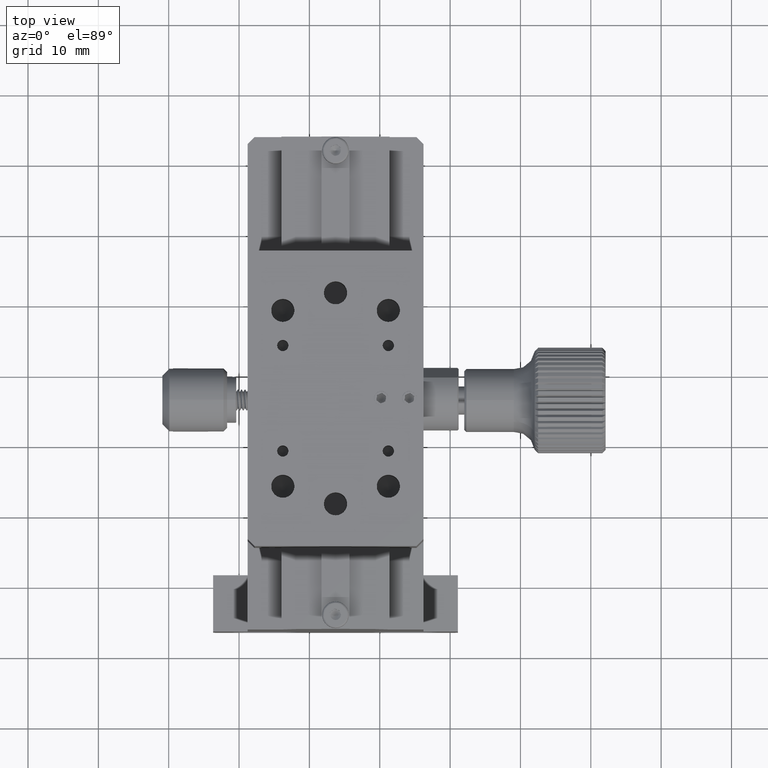
[diagram: clean part render]
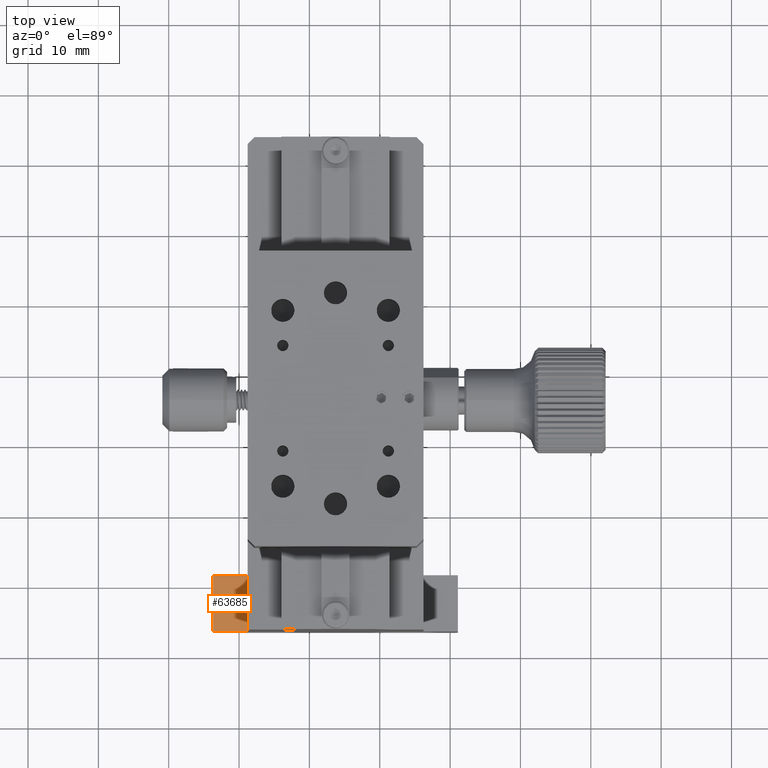
[diagram: same view with one face highlighted and labeled with its STEP entity id]
A machine part, top view. The second image highlights one B-rep face of the part: STEP entity #63685.
In plain terms, the highlighted planar face has unit normal (0, 0, -1).
Its self-contained STEP definition (entity closure, byte-faithful):
#1549 = EDGE_LOOP ( 'NONE', ( #80418, #48495, #39889, #37547 ) ) ;
#3572 = EDGE_CURVE ( 'NONE', #104016, #20531, #49334, .T. ) ;
#5425 = AXIS2_PLACEMENT_3D ( 'NONE', #43985, #71695, #106459 ) ;
#7205 = VERTEX_POINT ( 'NONE', #17112 ) ;
#8648 = FACE_OUTER_BOUND ( 'NONE', #1549, .T. ) ;
#9329 = LINE ( 'NONE', #79467, #33987 ) ;
#12155 = VECTOR ( 'NONE', #47116, 1000.000000000000000 ) ;
#13657 = CARTESIAN_POINT ( 'NONE',  ( 46.31116878375735268, 21.63550279078406646, 56.95689688579005860 ) ) ;
#17112 = CARTESIAN_POINT ( 'NONE',  ( 46.31116878375735268, 13.63550279078407002, 56.95689688578997334 ) ) ;
#20531 = VERTEX_POINT ( 'NONE', #49806 ) ;
#22589 = LINE ( 'NONE', #60260, #103568 ) ;
#33987 = VECTOR ( 'NONE', #53502, 1000.000000000000000 ) ;
#37547 = ORIENTED_EDGE ( 'NONE', *, *, #3572, .F. ) ;
#39831 = EDGE_CURVE ( 'NONE', #7205, #104016, #9329, .T. ) ;
#39889 = ORIENTED_EDGE ( 'NONE', *, *, #72749, .T. ) ;
#41661 = CARTESIAN_POINT ( 'NONE',  ( 63.71116878375735126, 21.63550279078407002, 56.95689688579005860 ) ) ;
#43985 = CARTESIAN_POINT ( 'NONE',  ( 46.31116878375735268, 13.63550279078407002, 56.95689688578997334 ) ) ;
#47116 = DIRECTION ( 'NONE',  ( -1.000000000000000000, 7.416434258480956754E-30, -7.080503983578801851E-16 ) ) ;
#48495 = ORIENTED_EDGE ( 'NONE', *, *, #91325, .F. ) ;
#49334 = LINE ( 'NONE', #41661, #68852 ) ;
#49655 = DIRECTION ( 'NONE',  ( -0.000000000000000000, 1.000000000000000000, 0.000000000000000000 ) ) ;
#49806 = CARTESIAN_POINT ( 'NONE',  ( 51.21116878375734416, 21.63550279078406646, 56.95689688579000176 ) ) ;
#53502 = DIRECTION ( 'NONE',  ( 0.000000000000000000, 1.000000000000000000, 1.047444401652940007E-14 ) ) ;
#60260 = CARTESIAN_POINT ( 'NONE',  ( 51.21116878375735126, 83.63550279078391725, 56.95689688578997334 ) ) ;
#63685 = ADVANCED_FACE ( 'NONE', ( #8648 ), #108188, .F. ) ;
#63771 = VERTEX_POINT ( 'NONE', #72253 ) ;
#68852 = VECTOR ( 'NONE', #103541, 1000.000000000000000 ) ;
#71695 = DIRECTION ( 'NONE',  ( 7.080503983578801851E-16, 1.047444401652940007E-14, -1.000000000000000000 ) ) ;
#72253 = CARTESIAN_POINT ( 'NONE',  ( 51.21116878375734416, 13.63550279078395988, 56.95689688578997334 ) ) ;
#72749 = EDGE_CURVE ( 'NONE', #63771, #20531, #22589, .T. ) ;
#75408 = CARTESIAN_POINT ( 'NONE',  ( 46.31116878375735268, 13.63550279078407002, 56.95689688578997334 ) ) ;
#79467 = CARTESIAN_POINT ( 'NONE',  ( 46.31116878375735268, 13.63550279078407002, 56.95689688578997334 ) ) ;
#80418 = ORIENTED_EDGE ( 'NONE', *, *, #39831, .F. ) ;
#91325 = EDGE_CURVE ( 'NONE', #63771, #7205, #100734, .T. ) ;
#100734 = LINE ( 'NONE', #75408, #12155 ) ;
#103541 = DIRECTION ( 'NONE',  ( 1.000000000000000000, 0.000000000000000000, 0.000000000000000000 ) ) ;
#103568 = VECTOR ( 'NONE', #49655, 1000.000000000000000 ) ;
#104016 = VERTEX_POINT ( 'NONE', #13657 ) ;
#106459 = DIRECTION ( 'NONE',  ( 0.000000000000000000, 1.000000000000000000, 1.047444401652940007E-14 ) ) ;
#108188 = PLANE ( 'NONE',  #5425 ) ;